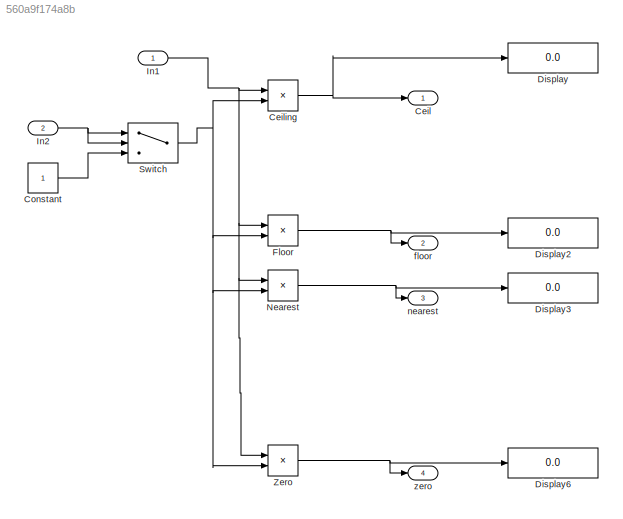
MODEL slx_560a9f174a8b
KIND model
CONFIG AbsTol = auto
CONFIG EnableMultiTasking = off
CONFIG FixedStep = 0.200000
CONFIG MaxStep = auto
CONFIG MinStep = auto
CONFIG RelTol = 1e-3
CONFIG SampleTimeConstraint = Unconstrained
CONFIG Solver = ode3
CONFIG SolverName = ode3
CONFIG StartTime = 0.0
CONFIG StopTime = 10.0
BLOCK [Outport] Ceil
  IconDisplay = Port number
BLOCK [Product] Ceiling
  InputSameDT = off
  Inputs = */
  OutDataTypeStr = Inherit: Inherit via internal rule
  Ports = [2, 1]
  RndMeth = Ceiling
  SaturateOnIntegerOverflow = off
BLOCK [Constant] Constant
  OutDataTypeStr = int8
BLOCK [Display] Display
  Decimation = 1
  Ports = [1]
BLOCK [Display] Display2
  Decimation = 1
  Ports = [1]
BLOCK [Display] Display3
  Decimation = 1
  Ports = [1]
BLOCK [Display] Display6
  Decimation = 1
  Ports = [1]
BLOCK [Product] Floor
  InputSameDT = off
  Inputs = */
  OutDataTypeStr = Inherit: Inherit via internal rule
  Ports = [2, 1]
  RndMeth = Floor
  SaturateOnIntegerOverflow = off
BLOCK [Inport] In1
  IconDisplay = Port number
  OutDataTypeStr = int8
BLOCK [Inport] In2
  IconDisplay = Port number
  OutDataTypeStr = int8
  Port = 2
BLOCK [Product] Nearest
  InputSameDT = off
  Inputs = */
  OutDataTypeStr = Inherit: Inherit via internal rule
  Ports = [2, 1]
  RndMeth = Nearest
  SaturateOnIntegerOverflow = off
BLOCK [Switch] Switch
  Criteria = u2 ~= 0
  InputSameDT = off
  SaturateOnIntegerOverflow = off
BLOCK [Product] Zero
  InputSameDT = off
  Inputs = */
  OutDataTypeStr = Inherit: Inherit via internal rule
  Ports = [2, 1]
  SaturateOnIntegerOverflow = off
BLOCK [Outport] floor
  IconDisplay = Port number
  Port = 2
BLOCK [Outport] nearest
  IconDisplay = Port number
  Port = 3
BLOCK [Outport] zero
  IconDisplay = Port number
  Port = 4
NET Ceiling:1 -> Ceil:1, Display:1
LINE Constant:1 -> Switch:3
NET Floor:1 -> Display2:1, floor:1
NET In1:1 -> Ceiling:1, Floor:1, Nearest:1, Zero:1
NET In2:1 -> Switch:1, Switch:2
NET Nearest:1 -> Display3:1, nearest:1
NET Switch:1 -> Ceiling:2, Floor:2, Nearest:2, Zero:2
NET Zero:1 -> Display6:1, zero:1
note: NET lines group one-source signal fan-out (src -> all destinations, sorted); 1:1 wires keep LINE
